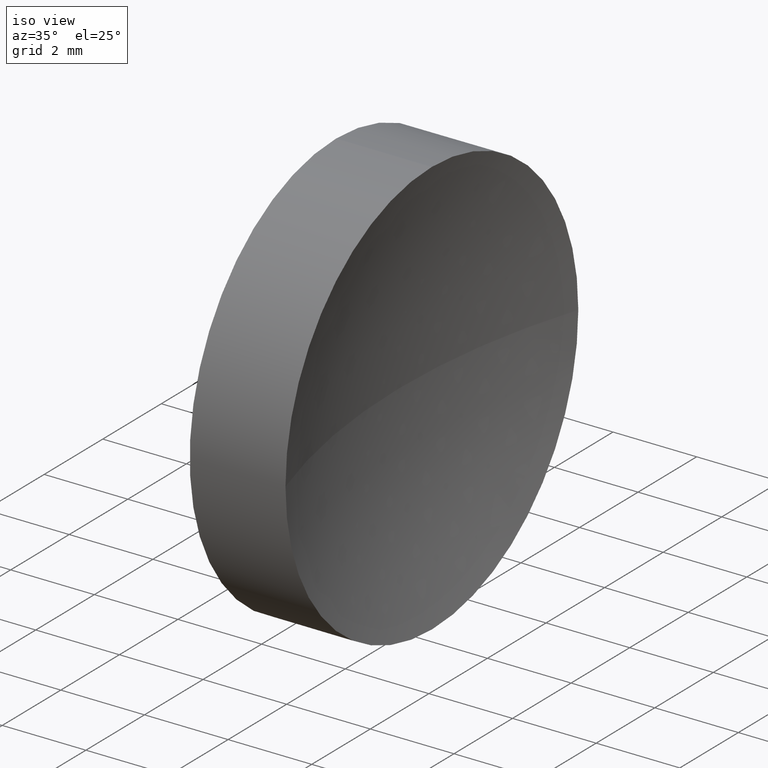
[diagram: clean part render]
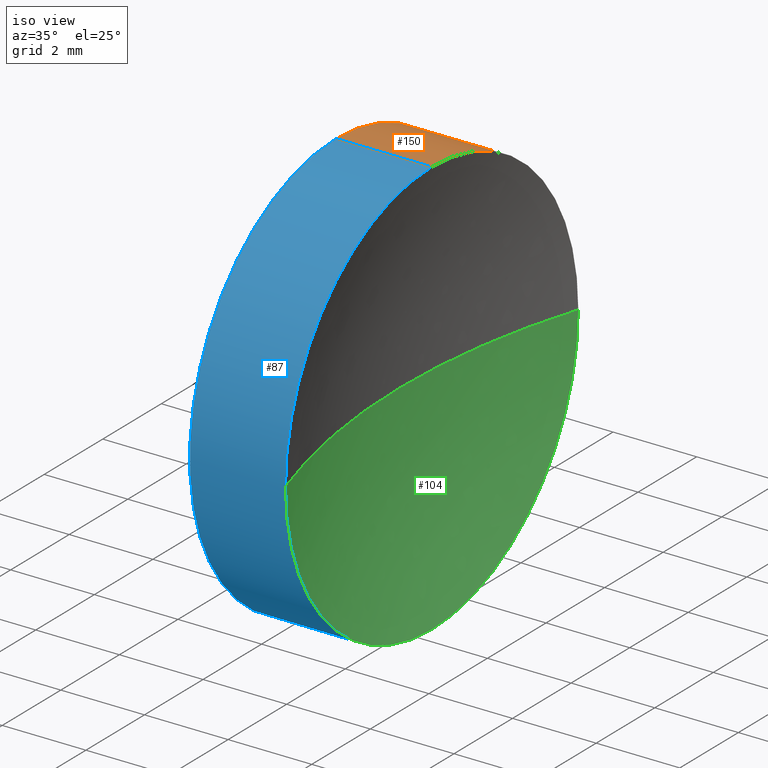
[diagram: same view with three faces highlighted in distinct colors, each labeled with its STEP entity id]
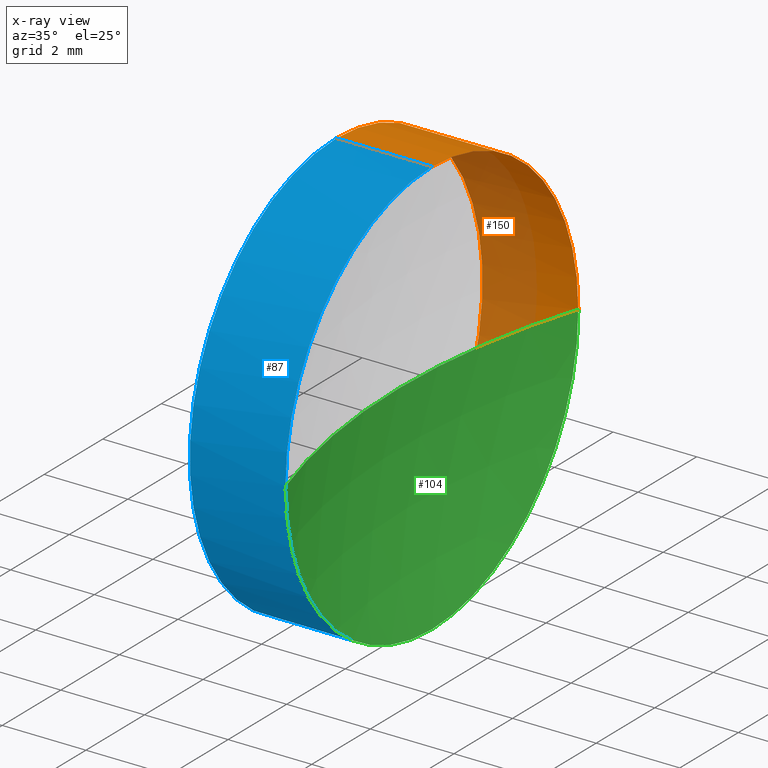
[diagram: x-ray of the same camera — body ghosted, the three highlighted faces saturated]
A machine part, iso view with three faces highlighted in distinct colors.
The next image is the same camera in x-ray (body ghosted, the three faces saturated) — at least one of them is partly hidden behind the body in this view.
Their STEP definitions:

[orange] entity #150 — the highlighted cylindrical surface (partial cylindrical patch) has radius 5 mm, axis along (-1, -0, -0).
#1 = ORIENTED_EDGE ( 'NONE', *, *, #4, .T. ) ;
#4 = EDGE_CURVE ( 'NONE', #98, #154, #177, .T. ) ;
#7 = LINE ( 'NONE', #9, #44 ) ;
#9 = CARTESIAN_POINT ( 'NONE',  ( 42.44986111413682300, 26.08904114919495900, -5.000000000000000900 ) ) ;
#10 = EDGE_CURVE ( 'NONE', #100, #29, #7, .T. ) ;
#11 = DIRECTION ( 'NONE',  ( -1.000000000000000000, -0.0000000000000000000, -0.0000000000000000000 ) ) ;
#15 = EDGE_CURVE ( 'NONE', #43, #29, #68, .T. ) ;
#21 = DIRECTION ( 'NONE',  ( -1.000000000000000000, -0.0000000000000000000, -0.0000000000000000000 ) ) ;
#29 = VERTEX_POINT ( 'NONE', #64 ) ;
#33 = ORIENTED_EDGE ( 'NONE', *, *, #15, .F. ) ;
#36 = CARTESIAN_POINT ( 'NONE',  ( 46.60958549791029500, 26.08904114919495900, 0.0000000000000000000 ) ) ;
#37 = DIRECTION ( 'NONE',  ( 0.0000000000000000000, 0.0000000000000000000, 1.000000000000000000 ) ) ;
#40 = DIRECTION ( 'NONE',  ( 0.0000000000000000000, 0.0000000000000000000, 1.000000000000000000 ) ) ;
#41 = CARTESIAN_POINT ( 'NONE',  ( 46.60958549791029500, 26.08904114919495900, -5.000000000000000900 ) ) ;
#43 = VERTEX_POINT ( 'NONE', #175 ) ;
#44 = VECTOR ( 'NONE', #137, 1000.000000000000000 ) ;
#47 = CARTESIAN_POINT ( 'NONE',  ( 46.60958549791029500, 31.08904114919496600, 6.123233995736773200E-016 ) ) ;
#52 = ORIENTED_EDGE ( 'NONE', *, *, #84, .T. ) ;
#55 = AXIS2_PLACEMENT_3D ( 'NONE', #130, #11, #40 ) ;
#56 = EDGE_LOOP ( 'NONE', ( #52, #60, #33, #183, #1 ) ) ;
#60 = ORIENTED_EDGE ( 'NONE', *, *, #10, .T. ) ;
#64 = CARTESIAN_POINT ( 'NONE',  ( 44.31958549791029600, 26.08904114919495900, -5.000000000000000900 ) ) ;
#68 = CIRCLE ( 'NONE', #91, 5.000000000000000900 ) ;
#77 = CARTESIAN_POINT ( 'NONE',  ( 42.44986111413682300, 26.08904114919495900, 5.000000000000000900 ) ) ;
#84 = EDGE_CURVE ( 'NONE', #154, #100, #160, .T. ) ;
#88 = CARTESIAN_POINT ( 'NONE',  ( 42.44986111413682300, 26.08904114919495900, 0.0000000000000000000 ) ) ;
#89 = CARTESIAN_POINT ( 'NONE',  ( 44.31958549791029600, 26.08904114919495900, 0.0000000000000000000 ) ) ;
#91 = AXIS2_PLACEMENT_3D ( 'NONE', #89, #129, #37 ) ;
#93 = CARTESIAN_POINT ( 'NONE',  ( 46.60958549791029500, 26.08904114919495900, 5.000000000000000900 ) ) ;
#94 = EDGE_CURVE ( 'NONE', #98, #43, #141, .T. ) ;
#98 = VERTEX_POINT ( 'NONE', #93 ) ;
#100 = VERTEX_POINT ( 'NONE', #41 ) ;
#103 = VECTOR ( 'NONE', #140, 1000.000000000000000 ) ;
#105 = AXIS2_PLACEMENT_3D ( 'NONE', #36, #21, #124 ) ;
#114 = CYLINDRICAL_SURFACE ( 'NONE', #181, 5.000000000000000900 ) ;
#120 = FACE_OUTER_BOUND ( 'NONE', #56, .T. ) ;
#124 = DIRECTION ( 'NONE',  ( 0.0000000000000000000, 0.0000000000000000000, 1.000000000000000000 ) ) ;
#129 = DIRECTION ( 'NONE',  ( -1.000000000000000000, -0.0000000000000000000, -0.0000000000000000000 ) ) ;
#130 = CARTESIAN_POINT ( 'NONE',  ( 46.60958549791029500, 26.08904114919495900, 0.0000000000000000000 ) ) ;
#137 = DIRECTION ( 'NONE',  ( -1.000000000000000000, -0.0000000000000000000, -0.0000000000000000000 ) ) ;
#140 = DIRECTION ( 'NONE',  ( -1.000000000000000000, -0.0000000000000000000, -0.0000000000000000000 ) ) ;
#141 = LINE ( 'NONE', #77, #103 ) ;
#150 = ADVANCED_FACE ( 'NONE', ( #120 ), #114, .T. ) ;
#154 = VERTEX_POINT ( 'NONE', #47 ) ;
#160 = CIRCLE ( 'NONE', #55, 5.000000000000000900 ) ;
#165 = DIRECTION ( 'NONE',  ( 0.0000000000000000000, 0.0000000000000000000, 1.000000000000000000 ) ) ;
#166 = DIRECTION ( 'NONE',  ( -1.000000000000000000, -0.0000000000000000000, -0.0000000000000000000 ) ) ;
#175 = CARTESIAN_POINT ( 'NONE',  ( 44.31958549791029600, 26.08904114919495900, 5.000000000000000900 ) ) ;
#177 = CIRCLE ( 'NONE', #105, 5.000000000000000900 ) ;
#181 = AXIS2_PLACEMENT_3D ( 'NONE', #88, #166, #165 ) ;
#183 = ORIENTED_EDGE ( 'NONE', *, *, #94, .F. ) ;

[blue] entity #87 — the highlighted cylindrical surface (partial cylindrical patch) has radius 5 mm, axis along (-1, -0, -0).
#3 = FACE_OUTER_BOUND ( 'NONE', #20, .T. ) ;
#7 = LINE ( 'NONE', #9, #44 ) ;
#9 = CARTESIAN_POINT ( 'NONE',  ( 42.44986111413682300, 26.08904114919495900, -5.000000000000000900 ) ) ;
#10 = EDGE_CURVE ( 'NONE', #100, #29, #7, .T. ) ;
#20 = EDGE_LOOP ( 'NONE', ( #65, #108, #95, #169, #27 ) ) ;
#23 = CARTESIAN_POINT ( 'NONE',  ( 42.44986111413682300, 26.08904114919495900, 0.0000000000000000000 ) ) ;
#27 = ORIENTED_EDGE ( 'NONE', *, *, #72, .F. ) ;
#28 = CARTESIAN_POINT ( 'NONE',  ( 46.60958549791029500, 26.08904114919495900, 0.0000000000000000000 ) ) ;
#29 = VERTEX_POINT ( 'NONE', #64 ) ;
#41 = CARTESIAN_POINT ( 'NONE',  ( 46.60958549791029500, 26.08904114919495900, -5.000000000000000900 ) ) ;
#43 = VERTEX_POINT ( 'NONE', #175 ) ;
#44 = VECTOR ( 'NONE', #137, 1000.000000000000000 ) ;
#54 = AXIS2_PLACEMENT_3D ( 'NONE', #28, #122, #99 ) ;
#63 = CARTESIAN_POINT ( 'NONE',  ( 44.31958549791029600, 26.08904114919495900, 0.0000000000000000000 ) ) ;
#64 = CARTESIAN_POINT ( 'NONE',  ( 44.31958549791029600, 26.08904114919495900, -5.000000000000000900 ) ) ;
#65 = ORIENTED_EDGE ( 'NONE', *, *, #10, .F. ) ;
#69 = AXIS2_PLACEMENT_3D ( 'NONE', #23, #128, #156 ) ;
#72 = EDGE_CURVE ( 'NONE', #29, #43, #135, .T. ) ;
#75 = AXIS2_PLACEMENT_3D ( 'NONE', #63, #186, #90 ) ;
#76 = CYLINDRICAL_SURFACE ( 'NONE', #69, 5.000000000000000900 ) ;
#77 = CARTESIAN_POINT ( 'NONE',  ( 42.44986111413682300, 26.08904114919495900, 5.000000000000000900 ) ) ;
#81 = EDGE_CURVE ( 'NONE', #100, #118, #185, .T. ) ;
#87 = ADVANCED_FACE ( 'NONE', ( #3 ), #76, .T. ) ;
#90 = DIRECTION ( 'NONE',  ( 0.0000000000000000000, 0.0000000000000000000, 1.000000000000000000 ) ) ;
#93 = CARTESIAN_POINT ( 'NONE',  ( 46.60958549791029500, 26.08904114919495900, 5.000000000000000900 ) ) ;
#94 = EDGE_CURVE ( 'NONE', #98, #43, #141, .T. ) ;
#95 = ORIENTED_EDGE ( 'NONE', *, *, #107, .T. ) ;
#97 = CIRCLE ( 'NONE', #54, 5.000000000000000900 ) ;
#98 = VERTEX_POINT ( 'NONE', #93 ) ;
#99 = DIRECTION ( 'NONE',  ( 0.0000000000000000000, 0.0000000000000000000, 1.000000000000000000 ) ) ;
#100 = VERTEX_POINT ( 'NONE', #41 ) ;
#103 = VECTOR ( 'NONE', #140, 1000.000000000000000 ) ;
#107 = EDGE_CURVE ( 'NONE', #118, #98, #97, .T. ) ;
#108 = ORIENTED_EDGE ( 'NONE', *, *, #81, .T. ) ;
#110 = CARTESIAN_POINT ( 'NONE',  ( 46.60958549791029500, 26.08904114919495900, 0.0000000000000000000 ) ) ;
#111 = DIRECTION ( 'NONE',  ( -1.000000000000000000, -0.0000000000000000000, -0.0000000000000000000 ) ) ;
#117 = CARTESIAN_POINT ( 'NONE',  ( 46.60958549791029500, 21.08904114919495100, 0.0000000000000000000 ) ) ;
#118 = VERTEX_POINT ( 'NONE', #117 ) ;
#122 = DIRECTION ( 'NONE',  ( -1.000000000000000000, -0.0000000000000000000, -0.0000000000000000000 ) ) ;
#128 = DIRECTION ( 'NONE',  ( -1.000000000000000000, -0.0000000000000000000, -0.0000000000000000000 ) ) ;
#135 = CIRCLE ( 'NONE', #75, 5.000000000000000900 ) ;
#137 = DIRECTION ( 'NONE',  ( -1.000000000000000000, -0.0000000000000000000, -0.0000000000000000000 ) ) ;
#140 = DIRECTION ( 'NONE',  ( -1.000000000000000000, -0.0000000000000000000, -0.0000000000000000000 ) ) ;
#141 = LINE ( 'NONE', #77, #103 ) ;
#156 = DIRECTION ( 'NONE',  ( 0.0000000000000000000, 0.0000000000000000000, 1.000000000000000000 ) ) ;
#157 = DIRECTION ( 'NONE',  ( 0.0000000000000000000, 0.0000000000000000000, 1.000000000000000000 ) ) ;
#161 = AXIS2_PLACEMENT_3D ( 'NONE', #110, #111, #157 ) ;
#169 = ORIENTED_EDGE ( 'NONE', *, *, #94, .T. ) ;
#175 = CARTESIAN_POINT ( 'NONE',  ( 44.31958549791029600, 26.08904114919495900, 5.000000000000000900 ) ) ;
#185 = CIRCLE ( 'NONE', #161, 5.000000000000000900 ) ;
#186 = DIRECTION ( 'NONE',  ( -1.000000000000000000, -0.0000000000000000000, -0.0000000000000000000 ) ) ;

[green] entity #104 — the highlighted spherical surface has radius 16.2178 mm.
#11 = DIRECTION ( 'NONE',  ( -1.000000000000000000, -0.0000000000000000000, -0.0000000000000000000 ) ) ;
#14 = ORIENTED_EDGE ( 'NONE', *, *, #81, .F. ) ;
#18 = DIRECTION ( 'NONE',  ( 0.0000000000000000000, -1.224646799147353200E-016, 1.000000000000000000 ) ) ;
#24 = CARTESIAN_POINT ( 'NONE',  ( 62.03736885217669100, 26.08904114919495900, 0.0000000000000000000 ) ) ;
#30 = DIRECTION ( 'NONE',  ( 0.0000000000000000000, -1.000000000000000000, -1.224646799147353000E-016 ) ) ;
#35 = VERTEX_POINT ( 'NONE', #78 ) ;
#39 = AXIS2_PLACEMENT_3D ( 'NONE', #101, #18, #30 ) ;
#40 = DIRECTION ( 'NONE',  ( 0.0000000000000000000, 0.0000000000000000000, 1.000000000000000000 ) ) ;
#41 = CARTESIAN_POINT ( 'NONE',  ( 46.60958549791029500, 26.08904114919495900, -5.000000000000000900 ) ) ;
#47 = CARTESIAN_POINT ( 'NONE',  ( 46.60958549791029500, 31.08904114919496600, 6.123233995736773200E-016 ) ) ;
#48 = CIRCLE ( 'NONE', #143, 16.21778342518420100 ) ;
#51 = EDGE_CURVE ( 'NONE', #118, #35, #48, .T. ) ;
#55 = AXIS2_PLACEMENT_3D ( 'NONE', #130, #11, #40 ) ;
#58 = DIRECTION ( 'NONE',  ( 0.0000000000000000000, 0.0000000000000000000, 1.000000000000000000 ) ) ;
#74 = EDGE_LOOP ( 'NONE', ( #153, #125, #113, #14 ) ) ;
#78 = CARTESIAN_POINT ( 'NONE',  ( 45.81958542699248900, 26.08904114919495900, 0.0000000000000000000 ) ) ;
#79 = DIRECTION ( 'NONE',  ( -1.000000000000000000, 0.0000000000000000000, 0.0000000000000000000 ) ) ;
#81 = EDGE_CURVE ( 'NONE', #100, #118, #185, .T. ) ;
#83 = SPHERICAL_SURFACE ( 'NONE', #172, 16.21778342518420100 ) ;
#84 = EDGE_CURVE ( 'NONE', #154, #100, #160, .T. ) ;
#100 = VERTEX_POINT ( 'NONE', #41 ) ;
#101 = CARTESIAN_POINT ( 'NONE',  ( 62.03736885217669100, 26.08904114919495900, 0.0000000000000000000 ) ) ;
#102 = DIRECTION ( 'NONE',  ( 0.0000000000000000000, -1.000000000000000000, 0.0000000000000000000 ) ) ;
#104 = ADVANCED_FACE ( 'NONE', ( #155 ), #83, .F. ) ;
#110 = CARTESIAN_POINT ( 'NONE',  ( 46.60958549791029500, 26.08904114919495900, 0.0000000000000000000 ) ) ;
#111 = DIRECTION ( 'NONE',  ( -1.000000000000000000, -0.0000000000000000000, -0.0000000000000000000 ) ) ;
#113 = ORIENTED_EDGE ( 'NONE', *, *, #51, .F. ) ;
#117 = CARTESIAN_POINT ( 'NONE',  ( 46.60958549791029500, 21.08904114919495100, 0.0000000000000000000 ) ) ;
#118 = VERTEX_POINT ( 'NONE', #117 ) ;
#125 = ORIENTED_EDGE ( 'NONE', *, *, #176, .T. ) ;
#130 = CARTESIAN_POINT ( 'NONE',  ( 46.60958549791029500, 26.08904114919495900, 0.0000000000000000000 ) ) ;
#143 = AXIS2_PLACEMENT_3D ( 'NONE', #24, #184, #79 ) ;
#149 = CIRCLE ( 'NONE', #39, 16.21778342518420100 ) ;
#153 = ORIENTED_EDGE ( 'NONE', *, *, #84, .F. ) ;
#154 = VERTEX_POINT ( 'NONE', #47 ) ;
#155 = FACE_OUTER_BOUND ( 'NONE', #74, .T. ) ;
#157 = DIRECTION ( 'NONE',  ( 0.0000000000000000000, 0.0000000000000000000, 1.000000000000000000 ) ) ;
#160 = CIRCLE ( 'NONE', #55, 5.000000000000000900 ) ;
#161 = AXIS2_PLACEMENT_3D ( 'NONE', #110, #111, #157 ) ;
#172 = AXIS2_PLACEMENT_3D ( 'NONE', #173, #58, #102 ) ;
#173 = CARTESIAN_POINT ( 'NONE',  ( 62.03736885217669100, 26.08904114919495900, 0.0000000000000000000 ) ) ;
#176 = EDGE_CURVE ( 'NONE', #154, #35, #149, .T. ) ;
#184 = DIRECTION ( 'NONE',  ( 0.0000000000000000000, 0.0000000000000000000, -1.000000000000000000 ) ) ;
#185 = CIRCLE ( 'NONE', #161, 5.000000000000000900 ) ;